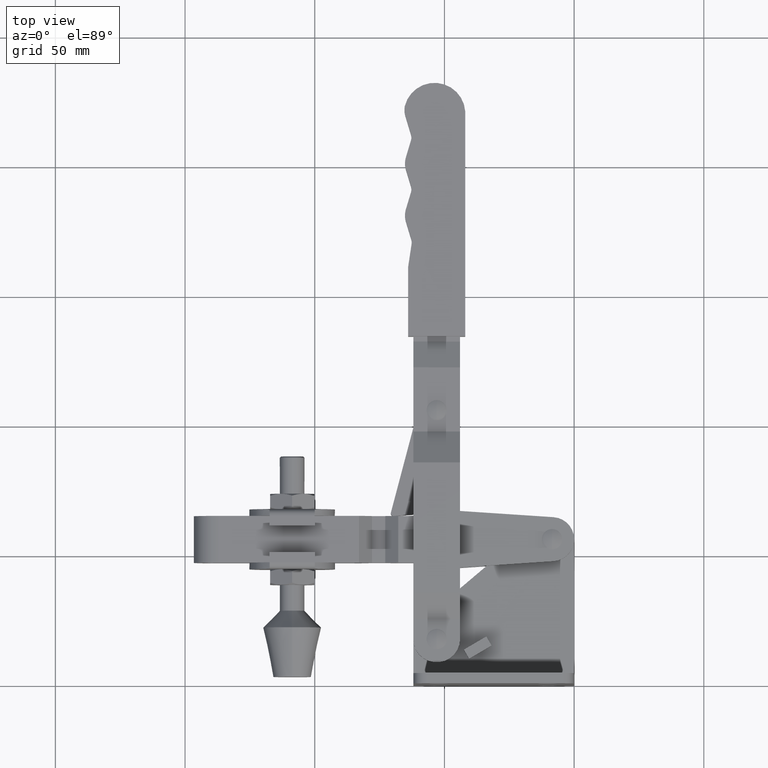
[diagram: clean part render]
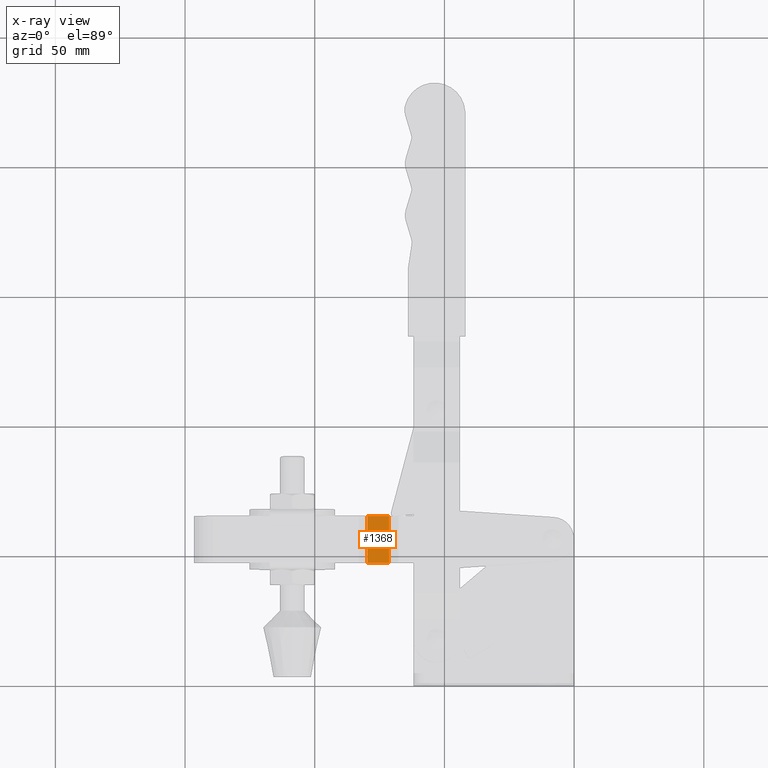
[diagram: x-ray — body ghosted, one internal face saturated and labeled with its STEP entity id]
A machine part, top view, then the same camera in x-ray: the body is ghosted and one INTERNAL B-rep face — a face not visible from any outside direction — is saturated and labeled: STEP entity #1368.
In plain terms, the highlighted planar face has unit normal (-0, 0, -1).
Its self-contained STEP definition (entity closure, byte-faithful):
#428 = EDGE_CURVE ( 'NONE', #8113, #8870, #1335, .T. ) ;
#478 = LINE ( 'NONE', #501, #6492 ) ;
#501 = CARTESIAN_POINT ( 'NONE',  ( -71.32337205120927600, 67.49627089396983600, -5.000000000001828500E-005 ) ) ;
#592 = DIRECTION ( 'NONE',  ( -1.158733834712639800E-018, 1.439574699350874800E-017, -1.000000000000000000 ) ) ;
#819 = ORIENTED_EDGE ( 'NONE', *, *, #9640, .T. ) ;
#1121 = FACE_OUTER_BOUND ( 'NONE', #8174, .T. ) ;
#1335 = LINE ( 'NONE', #7949, #9446 ) ;
#1368 = ADVANCED_FACE ( 'NONE', ( #1121 ), #10100, .F. ) ;
#1598 = VERTEX_POINT ( 'NONE', #2242 ) ;
#2160 = ORIENTED_EDGE ( 'NONE', *, *, #428, .T. ) ;
#2205 = DIRECTION ( 'NONE',  ( -0.0002981313534467922200, 0.9999999555588470200, 1.439609180863158000E-017 ) ) ;
#2242 = CARTESIAN_POINT ( 'NONE',  ( -79.69735910815215600, 46.97877343405355800, -5.000000000030394500E-005 ) ) ;
#2325 = ORIENTED_EDGE ( 'NONE', *, *, #6832, .T. ) ;
#2353 = AXIS2_PLACEMENT_3D ( 'NONE', #2423, #592, #2205 ) ;
#2423 = CARTESIAN_POINT ( 'NONE',  ( -88.04021150670948300, 44.46128605629632300, -5.000000000033052800E-005 ) ) ;
#2507 = CARTESIAN_POINT ( 'NONE',  ( -146.6973106760516400, 46.95879864692404500, -4.999999999979292000E-005 ) ) ;
#2733 = VECTOR ( 'NONE', #9574, 1000.000000000000100 ) ;
#2941 = LINE ( 'NONE', #4879, #8964 ) ;
#3806 = EDGE_CURVE ( 'NONE', #8113, #5323, #478, .T. ) ;
#4833 = CARTESIAN_POINT ( 'NONE',  ( -71.31725588649329900, 46.98127180568008000, -4.999999999883474300E-005 ) ) ;
#4879 = CARTESIAN_POINT ( 'NONE',  ( -79.70347527286813300, 67.49377252234330600, -4.999999999957492700E-005 ) ) ;
#5186 = DIRECTION ( 'NONE',  ( 0.0002981313534467922200, -0.9999999555588470200, -1.439609180863158000E-017 ) ) ;
#5323 = VERTEX_POINT ( 'NONE', #4833 ) ;
#5723 = CARTESIAN_POINT ( 'NONE',  ( -71.32262225085534600, 64.98127100573933000, -4.999999999931505800E-005 ) ) ;
#6180 = CARTESIAN_POINT ( 'NONE',  ( -79.70272547251421700, 64.97877263411281500, -5.000000000004482100E-005 ) ) ;
#6492 = VECTOR ( 'NONE', #5186, 1000.000000000000100 ) ;
#6560 = ORIENTED_EDGE ( 'NONE', *, *, #3806, .F. ) ;
#6832 = EDGE_CURVE ( 'NONE', #1598, #5323, #8997, .T. ) ;
#6937 = DIRECTION ( 'NONE',  ( -0.9999999555588470200, -0.0002981313534467922200, 1.154441959682110600E-018 ) ) ;
#7242 = DIRECTION ( 'NONE',  ( 0.0002981313534467922200, -0.9999999555588470200, -1.439609180863158000E-017 ) ) ;
#7949 = CARTESIAN_POINT ( 'NONE',  ( -88.04632767142544500, 64.97628514458607200, -5.000000000003519200E-005 ) ) ;
#8113 = VERTEX_POINT ( 'NONE', #5723 ) ;
#8174 = EDGE_LOOP ( 'NONE', ( #819, #2325, #6560, #2160 ) ) ;
#8870 = VERTEX_POINT ( 'NONE', #6180 ) ;
#8964 = VECTOR ( 'NONE', #7242, 1000.000000000000100 ) ;
#8997 = LINE ( 'NONE', #2507, #2733 ) ;
#9446 = VECTOR ( 'NONE', #6937, 1000.000000000000100 ) ;
#9574 = DIRECTION ( 'NONE',  ( 0.9999999555588470200, 0.0002981313534467922200, -1.154441959682110600E-018 ) ) ;
#9640 = EDGE_CURVE ( 'NONE', #8870, #1598, #2941, .T. ) ;
#10100 = PLANE ( 'NONE',  #2353 ) ;